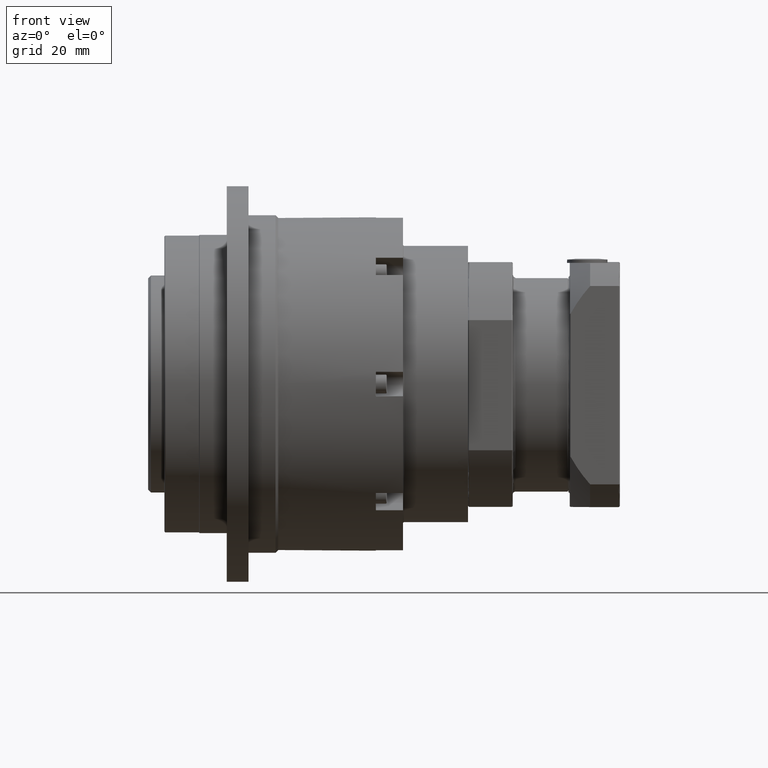
[diagram: clean part render]
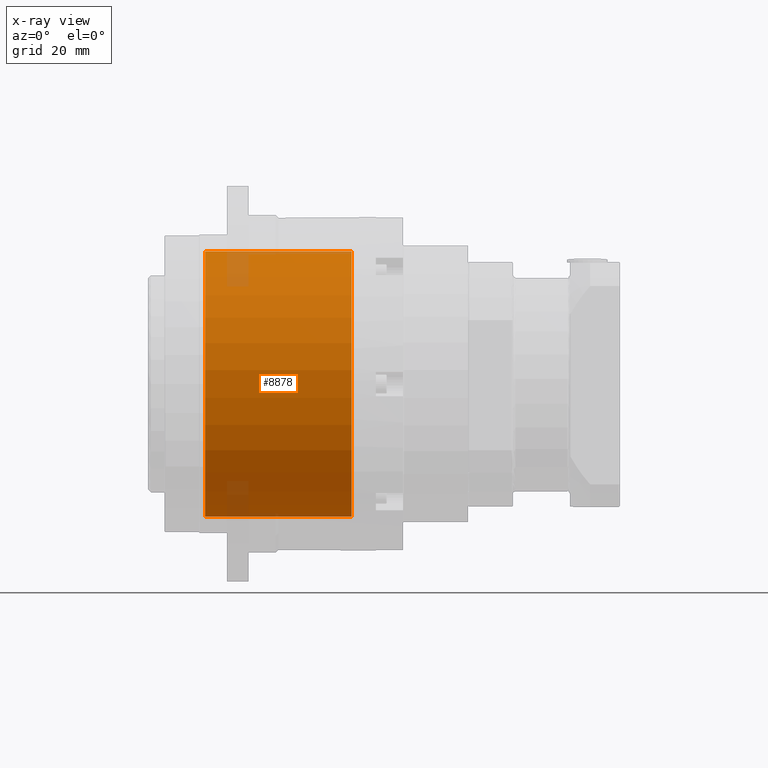
[diagram: x-ray — body ghosted, one internal face saturated and labeled with its STEP entity id]
A machine part, front view, then the same camera in x-ray: the body is ghosted and one INTERNAL B-rep face — a face not visible from any outside direction — is saturated and labeled: STEP entity #8878.
In plain terms, the highlighted cylindrical surface (bore or boss wall) has radius 48.875 mm, axis along (-1, -0, -0).
Its self-contained STEP definition (entity closure, byte-faithful):
#1561=FACE_BOUND('',#2616,.T.);
#1965=FACE_OUTER_BOUND('',#2615,.T.);
#2615=EDGE_LOOP('',(#6304));
#2616=EDGE_LOOP('',(#6305));
#3562=CIRCLE('',#9602,48.875);
#3569=CIRCLE('',#9616,48.875);
#4109=VERTEX_POINT('',#13737);
#4116=VERTEX_POINT('',#13758);
#5004=EDGE_CURVE('',#4109,#4109,#3562,.T.);
#5011=EDGE_CURVE('',#4116,#4116,#3569,.T.);
#6304=ORIENTED_EDGE('',*,*,#5011,.F.);
#6305=ORIENTED_EDGE('',*,*,#5004,.F.);
#8142=CYLINDRICAL_SURFACE('',#9615,48.875);
#8878=ADVANCED_FACE('',(#1965,#1561),#8142,.F.);
#9602=AXIS2_PLACEMENT_3D('',#13738,#10941,#10942);
#9615=AXIS2_PLACEMENT_3D('',#13757,#10967,#10968);
#9616=AXIS2_PLACEMENT_3D('',#13759,#10969,#10970);
#10941=DIRECTION('center_axis',(-1.,-3.88576431534471E-16,-1.33663550825114E-15));
#10942=DIRECTION('ref_axis',(-1.33660741522239E-15,-7.22883173358185E-5,
0.999999997387199));
#10967=DIRECTION('center_axis',(-1.,-3.88576431534471E-16,-1.33663550825114E-15));
#10968=DIRECTION('ref_axis',(-1.33660741522239E-15,-7.22883173358185E-5,
0.999999997387199));
#10969=DIRECTION('center_axis',(1.,3.88576431534471E-16,1.33663550825114E-15));
#10970=DIRECTION('ref_axis',(-1.33660741522239E-15,-7.22883173358185E-5,
0.999999997387199));
#13737=CARTESIAN_POINT('',(-42.1377428356573,50.9779237508832,-29.607946433007));
#13738=CARTESIAN_POINT('Origin',(-42.1377428356574,50.9743906593734,19.2670534392924));
#13757=CARTESIAN_POINT('Origin',(-42.1377428356574,50.9743906593734,19.2670534392924));
#13758=CARTESIAN_POINT('',(-96.1377428356573,50.9779237508832,-29.607946433007));
#13759=CARTESIAN_POINT('Origin',(-96.1377428356574,50.9743906593734,19.2670534392924));